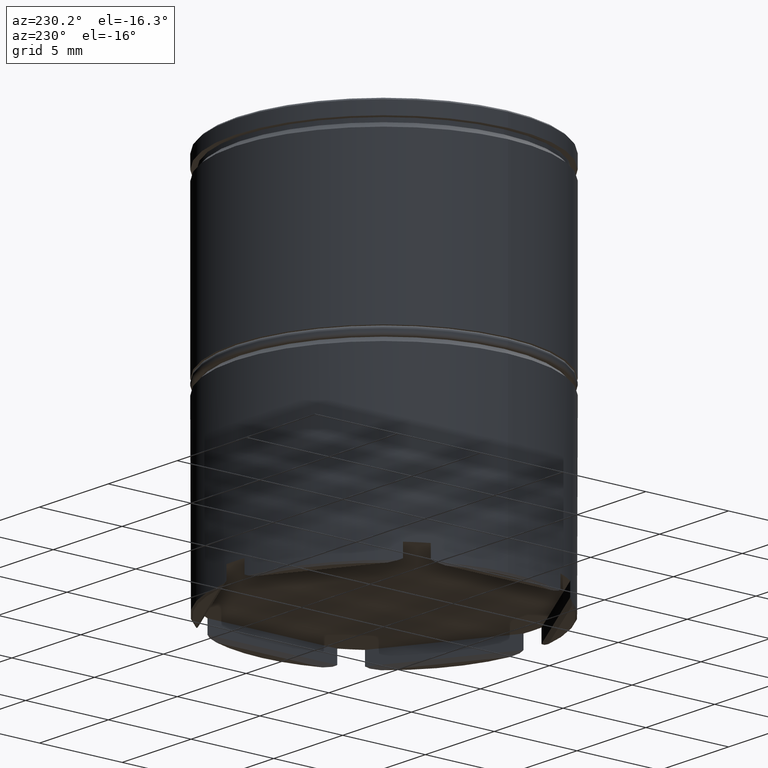
[diagram: clean part render]
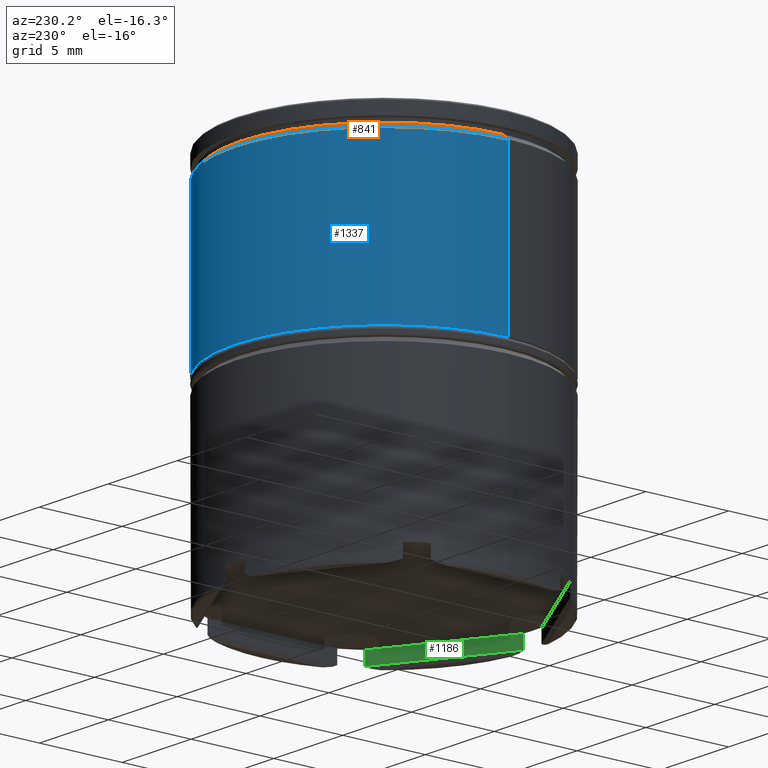
[diagram: same view with three faces highlighted in distinct colors, each labeled with its STEP entity id]
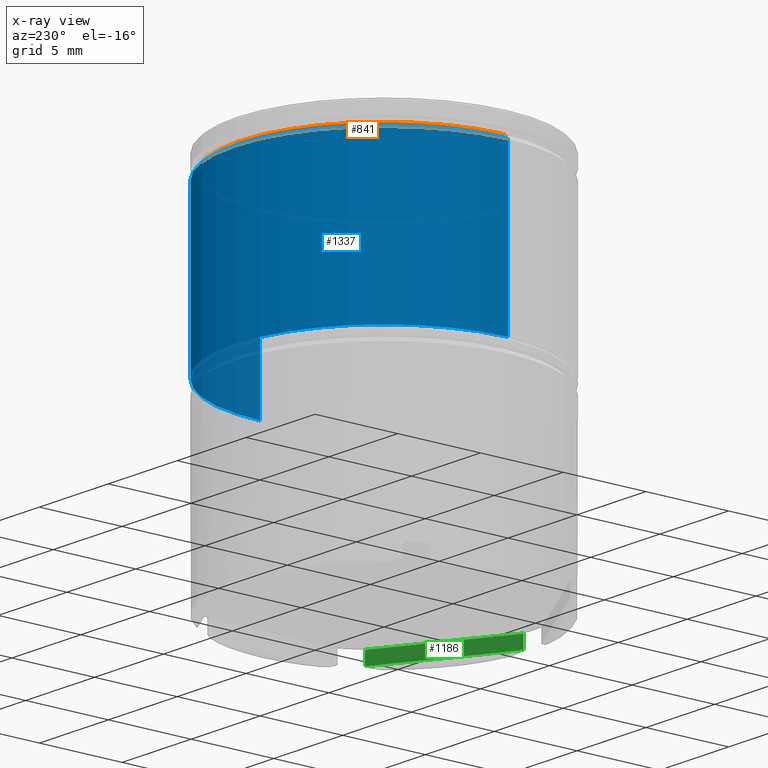
[diagram: x-ray of the same camera — body ghosted, the three highlighted faces saturated]
A machine part, auxiliary view with three faces highlighted in distinct colors.
The next image is the same camera in x-ray (body ghosted, the three faces saturated) — at least one of them is partly hidden behind the body in this view.
Their STEP definitions:

[orange] entity #841 — the highlighted conical surface has half-angle 45 deg.
#73 = CARTESIAN_POINT ( 'NONE',  ( -8.700000000000009948, 0.000000000000000000, -1.125000000000000222 ) ) ;
#155 = CARTESIAN_POINT ( 'NONE',  ( 9.000000000000000000, 0.000000000000000000, -1.424999999999989608 ) ) ;
#171 = VERTEX_POINT ( 'NONE', #1361 ) ;
#179 = CARTESIAN_POINT ( 'NONE',  ( 0.000000000000000000, 0.000000000000000000, -1.125000000000000222 ) ) ;
#285 = EDGE_LOOP ( 'NONE', ( #1607, #1545, #814, #443 ) ) ;
#286 = CARTESIAN_POINT ( 'NONE',  ( 0.000000000000000000, 0.000000000000000000, -1.424999999999989608 ) ) ;
#287 = AXIS2_PLACEMENT_3D ( 'NONE', #179, #1042, #1441 ) ;
#304 = DIRECTION ( 'NONE',  ( 0.7071067811865474617, 8.659560562354932858E-17, -0.7071067811865474617 ) ) ;
#321 = DIRECTION ( 'NONE',  ( -0.7071067811865474617, 0.000000000000000000, -0.7071067811865474617 ) ) ;
#403 = DIRECTION ( 'NONE',  ( 1.000000000000000000, 0.000000000000000000, 0.000000000000000000 ) ) ;
#409 = CARTESIAN_POINT ( 'NONE',  ( 0.000000000000000000, 0.000000000000000000, -1.125000000000000222 ) ) ;
#417 = DIRECTION ( 'NONE',  ( 0.000000000000000000, 0.000000000000000000, -1.000000000000000000 ) ) ;
#433 = LINE ( 'NONE', #656, #694 ) ;
#442 = LINE ( 'NONE', #73, #975 ) ;
#443 = ORIENTED_EDGE ( 'NONE', *, *, #1066, .F. ) ;
#472 = VERTEX_POINT ( 'NONE', #587 ) ;
#587 = CARTESIAN_POINT ( 'NONE',  ( -8.699999999999999289, 1.065442715258197248E-15, -1.125000000000000222 ) ) ;
#656 = CARTESIAN_POINT ( 'NONE',  ( 8.700000000000009948, 1.065442715258198432E-15, -1.125000000000000222 ) ) ;
#672 = CONICAL_SURFACE ( 'NONE', #287, 8.700000000000009948, 0.7853981633974482790 ) ;
#694 = VECTOR ( 'NONE', #304, 1000.000000000000114 ) ;
#814 = ORIENTED_EDGE ( 'NONE', *, *, #845, .F. ) ;
#825 = VERTEX_POINT ( 'NONE', #155 ) ;
#831 = EDGE_CURVE ( 'NONE', #171, #825, #433, .T. ) ;
#841 = ADVANCED_FACE ( 'NONE', ( #1566 ), #672, .T. ) ;
#845 = EDGE_CURVE ( 'NONE', #1392, #825, #1135, .T. ) ;
#916 = EDGE_CURVE ( 'NONE', #171, #472, #1479, .T. ) ;
#917 = DIRECTION ( 'NONE',  ( 1.000000000000000000, 0.000000000000000000, 0.000000000000000000 ) ) ;
#975 = VECTOR ( 'NONE', #321, 1000.000000000000114 ) ;
#999 = AXIS2_PLACEMENT_3D ( 'NONE', #286, #417, #917 ) ;
#1036 = CARTESIAN_POINT ( 'NONE',  ( -9.000000000000000000, 1.102182119232617714E-15, -1.424999999999989608 ) ) ;
#1042 = DIRECTION ( 'NONE',  ( 0.000000000000000000, 0.000000000000000000, -1.000000000000000000 ) ) ;
#1066 = EDGE_CURVE ( 'NONE', #472, #1392, #442, .T. ) ;
#1135 = CIRCLE ( 'NONE', #999, 9.000000000000000000 ) ;
#1361 = CARTESIAN_POINT ( 'NONE',  ( 8.699999999999999289, 0.000000000000000000, -1.125000000000000222 ) ) ;
#1392 = VERTEX_POINT ( 'NONE', #1036 ) ;
#1441 = DIRECTION ( 'NONE',  ( -1.000000000000000000, 0.000000000000000000, 0.000000000000000000 ) ) ;
#1479 = CIRCLE ( 'NONE', #1533, 8.699999999999999289 ) ;
#1533 = AXIS2_PLACEMENT_3D ( 'NONE', #409, #1540, #403 ) ;
#1540 = DIRECTION ( 'NONE',  ( -0.000000000000000000, -0.000000000000000000, 1.000000000000000000 ) ) ;
#1545 = ORIENTED_EDGE ( 'NONE', *, *, #831, .T. ) ;
#1566 = FACE_OUTER_BOUND ( 'NONE', #285, .T. ) ;
#1607 = ORIENTED_EDGE ( 'NONE', *, *, #916, .F. ) ;

[blue] entity #1337 — the highlighted cylindrical surface (partial cylindrical patch) has radius 9 mm, axis along (-0, -0, 1).
#18 = EDGE_CURVE ( 'NONE', #83, #882, #828, .T. ) ;
#83 = VERTEX_POINT ( 'NONE', #1358 ) ;
#143 = ORIENTED_EDGE ( 'NONE', *, *, #1087, .F. ) ;
#155 = CARTESIAN_POINT ( 'NONE',  ( 9.000000000000000000, 0.000000000000000000, -1.424999999999989608 ) ) ;
#167 = FACE_OUTER_BOUND ( 'NONE', #765, .T. ) ;
#283 = CYLINDRICAL_SURFACE ( 'NONE', #607, 9.000000000000000000 ) ;
#286 = CARTESIAN_POINT ( 'NONE',  ( 0.000000000000000000, 0.000000000000000000, -1.424999999999989608 ) ) ;
#369 = DIRECTION ( 'NONE',  ( -0.000000000000000000, -0.000000000000000000, 1.000000000000000000 ) ) ;
#417 = DIRECTION ( 'NONE',  ( 0.000000000000000000, 0.000000000000000000, -1.000000000000000000 ) ) ;
#431 = DIRECTION ( 'NONE',  ( 1.000000000000000000, 0.000000000000000000, 0.000000000000000000 ) ) ;
#441 = AXIS2_PLACEMENT_3D ( 'NONE', #1527, #1058, #431 ) ;
#460 = CARTESIAN_POINT ( 'NONE',  ( 9.000000000000000000, 0.000000000000000000, 0.000000000000000000 ) ) ;
#494 = CARTESIAN_POINT ( 'NONE',  ( -9.000000000000000000, 1.102182119232617714E-15, 0.000000000000000000 ) ) ;
#607 = AXIS2_PLACEMENT_3D ( 'NONE', #794, #1285, #644 ) ;
#644 = DIRECTION ( 'NONE',  ( 1.000000000000000000, 0.000000000000000000, 0.000000000000000000 ) ) ;
#648 = ORIENTED_EDGE ( 'NONE', *, *, #845, .T. ) ;
#765 = EDGE_LOOP ( 'NONE', ( #778, #1013, #648, #143 ) ) ;
#778 = ORIENTED_EDGE ( 'NONE', *, *, #18, .T. ) ;
#794 = CARTESIAN_POINT ( 'NONE',  ( 0.000000000000000000, 0.000000000000000000, 0.000000000000000000 ) ) ;
#815 = LINE ( 'NONE', #460, #892 ) ;
#825 = VERTEX_POINT ( 'NONE', #155 ) ;
#828 = CIRCLE ( 'NONE', #441, 9.000000000000000000 ) ;
#845 = EDGE_CURVE ( 'NONE', #1392, #825, #1135, .T. ) ;
#882 = VERTEX_POINT ( 'NONE', #1573 ) ;
#892 = VECTOR ( 'NONE', #944, 1000.000000000000000 ) ;
#917 = DIRECTION ( 'NONE',  ( 1.000000000000000000, 0.000000000000000000, 0.000000000000000000 ) ) ;
#944 = DIRECTION ( 'NONE',  ( -0.000000000000000000, -0.000000000000000000, 1.000000000000000000 ) ) ;
#992 = LINE ( 'NONE', #494, #1247 ) ;
#999 = AXIS2_PLACEMENT_3D ( 'NONE', #286, #417, #917 ) ;
#1013 = ORIENTED_EDGE ( 'NONE', *, *, #1173, .T. ) ;
#1036 = CARTESIAN_POINT ( 'NONE',  ( -9.000000000000000000, 1.102182119232617714E-15, -1.424999999999989608 ) ) ;
#1058 = DIRECTION ( 'NONE',  ( -0.000000000000000000, -0.000000000000000000, 1.000000000000000000 ) ) ;
#1087 = EDGE_CURVE ( 'NONE', #83, #825, #815, .T. ) ;
#1135 = CIRCLE ( 'NONE', #999, 9.000000000000000000 ) ;
#1173 = EDGE_CURVE ( 'NONE', #882, #1392, #992, .T. ) ;
#1247 = VECTOR ( 'NONE', #369, 1000.000000000000000 ) ;
#1285 = DIRECTION ( 'NONE',  ( -0.000000000000000000, -0.000000000000000000, 1.000000000000000000 ) ) ;
#1337 = ADVANCED_FACE ( 'NONE', ( #167 ), #283, .T. ) ;
#1358 = CARTESIAN_POINT ( 'NONE',  ( 9.000000000000000000, 0.000000000000000000, -11.00000000000000000 ) ) ;
#1392 = VERTEX_POINT ( 'NONE', #1036 ) ;
#1527 = CARTESIAN_POINT ( 'NONE',  ( 0.000000000000000000, 0.000000000000000000, -11.00000000000000000 ) ) ;
#1573 = CARTESIAN_POINT ( 'NONE',  ( -9.000000000000000000, 1.102182119232617714E-15, -11.00000000000000000 ) ) ;

[green] entity #1186 — the highlighted planar face has unit normal (0.5, -0.866, 0).
#12 = CARTESIAN_POINT ( 'NONE',  ( 7.447425495871829781, -5.053301246060659224, -22.30000000000000426 ) ) ;
#114 = AXIS2_PLACEMENT_3D ( 'NONE', #359, #1014, #510 ) ;
#170 = DIRECTION ( 'NONE',  ( -0.8660254037844387076, -0.4999999999999998335, 0.000000000000000000 ) ) ;
#241 = VECTOR ( 'NONE', #465, 1000.000000000000114 ) ;
#328 = VERTEX_POINT ( 'NONE', #1260 ) ;
#348 = VERTEX_POINT ( 'NONE', #12 ) ;
#359 = CARTESIAN_POINT ( 'NONE',  ( 8.100000000000001421, -4.676537180435970775, -21.50000000000000000 ) ) ;
#381 = FACE_OUTER_BOUND ( 'NONE', #1567, .T. ) ;
#420 = VECTOR ( 'NONE', #1390, 1000.000000000000000 ) ;
#437 = EDGE_CURVE ( 'NONE', #574, #328, #873, .T. ) ;
#453 = ORIENTED_EDGE ( 'NONE', *, *, #437, .T. ) ;
#465 = DIRECTION ( 'NONE',  ( -0.8660254037844387076, -0.4999999999999998890, 0.000000000000000000 ) ) ;
#510 = DIRECTION ( 'NONE',  ( 0.8660254037844387076, 0.4999999999999998335, 0.000000000000000000 ) ) ;
#532 = CARTESIAN_POINT ( 'NONE',  ( 0.6525745041281718617, -8.976310295247255766, 0.000000000000000000 ) ) ;
#552 = EDGE_CURVE ( 'NONE', #1107, #328, #967, .T. ) ;
#574 = VERTEX_POINT ( 'NONE', #706 ) ;
#614 = ORIENTED_EDGE ( 'NONE', *, *, #918, .T. ) ;
#706 = CARTESIAN_POINT ( 'NONE',  ( 0.6525745041281718617, -8.976310295247255766, -22.30000000000000426 ) ) ;
#780 = CARTESIAN_POINT ( 'NONE',  ( 7.447425495871829781, -5.053301246060659224, 0.000000000000000000 ) ) ;
#791 = LINE ( 'NONE', #1304, #804 ) ;
#804 = VECTOR ( 'NONE', #170, 1000.000000000000114 ) ;
#871 = EDGE_CURVE ( 'NONE', #1107, #348, #1060, .T. ) ;
#873 = LINE ( 'NONE', #532, #420 ) ;
#910 = VECTOR ( 'NONE', #1282, 1000.000000000000000 ) ;
#918 = EDGE_CURVE ( 'NONE', #348, #574, #791, .T. ) ;
#963 = ORIENTED_EDGE ( 'NONE', *, *, #871, .T. ) ;
#967 = LINE ( 'NONE', #1556, #241 ) ;
#1014 = DIRECTION ( 'NONE',  ( 0.4999999999999998335, -0.8660254037844387076, 0.000000000000000000 ) ) ;
#1060 = LINE ( 'NONE', #780, #910 ) ;
#1074 = CARTESIAN_POINT ( 'NONE',  ( 7.447425495871832446, -5.053301246060657448, -21.50000000000000000 ) ) ;
#1098 = ORIENTED_EDGE ( 'NONE', *, *, #552, .F. ) ;
#1107 = VERTEX_POINT ( 'NONE', #1074 ) ;
#1186 = ADVANCED_FACE ( 'NONE', ( #381 ), #1525, .F. ) ;
#1260 = CARTESIAN_POINT ( 'NONE',  ( 0.6525745041281688641, -8.976310295247257542, -21.50000000000000000 ) ) ;
#1282 = DIRECTION ( 'NONE',  ( 0.000000000000000000, 0.000000000000000000, -1.000000000000000000 ) ) ;
#1304 = CARTESIAN_POINT ( 'NONE',  ( 0.8562561154657374329, -8.858714662112531002, -22.30000000000000426 ) ) ;
#1390 = DIRECTION ( 'NONE',  ( -0.000000000000000000, -0.000000000000000000, 1.000000000000000000 ) ) ;
#1525 = PLANE ( 'NONE',  #114 ) ;
#1556 = CARTESIAN_POINT ( 'NONE',  ( 8.100000000000001421, -4.676537180435970775, -21.50000000000000000 ) ) ;
#1567 = EDGE_LOOP ( 'NONE', ( #963, #614, #453, #1098 ) ) ;